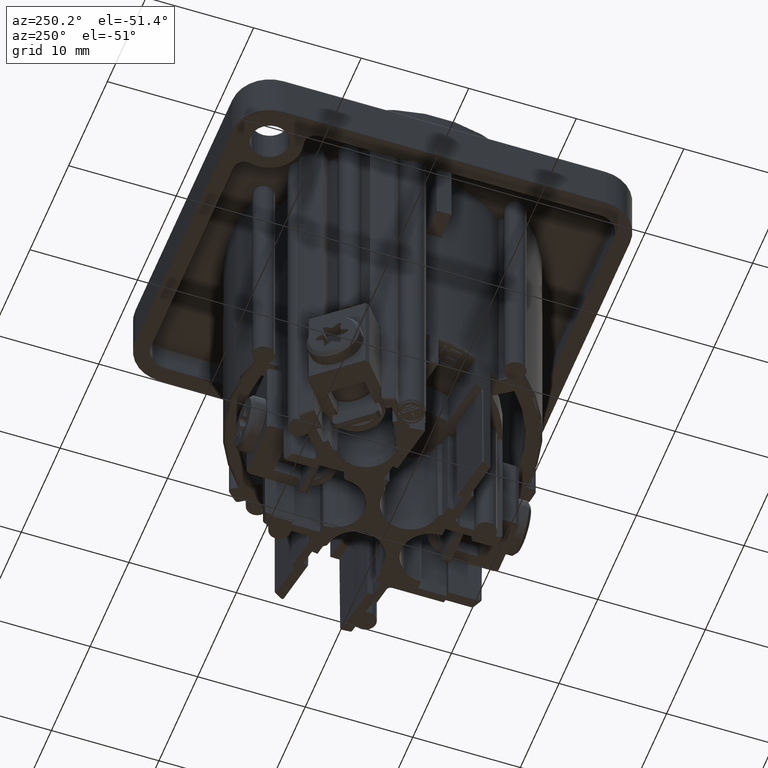
[diagram: clean part render]
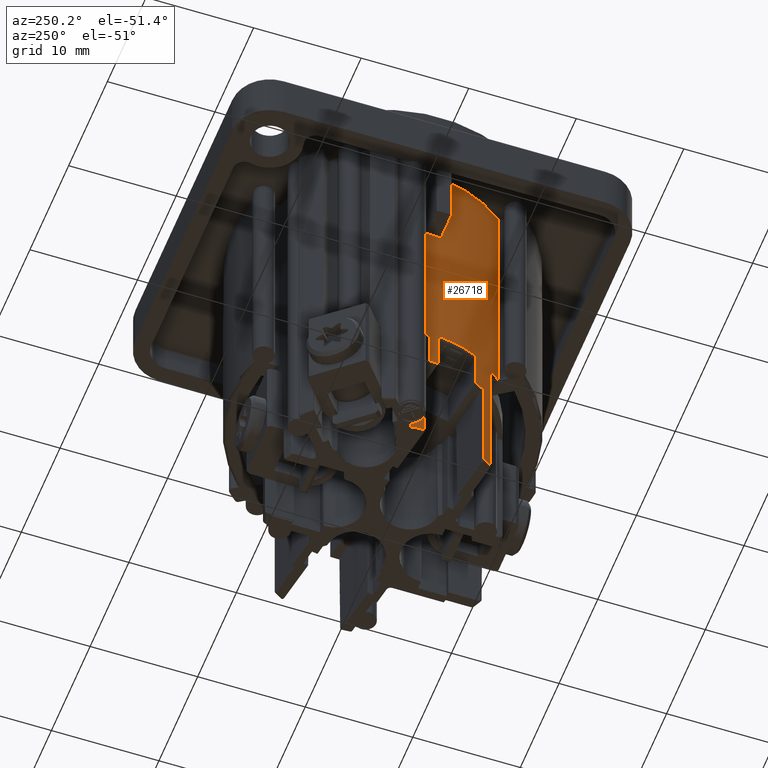
[diagram: same view with one face highlighted and labeled with its STEP entity id]
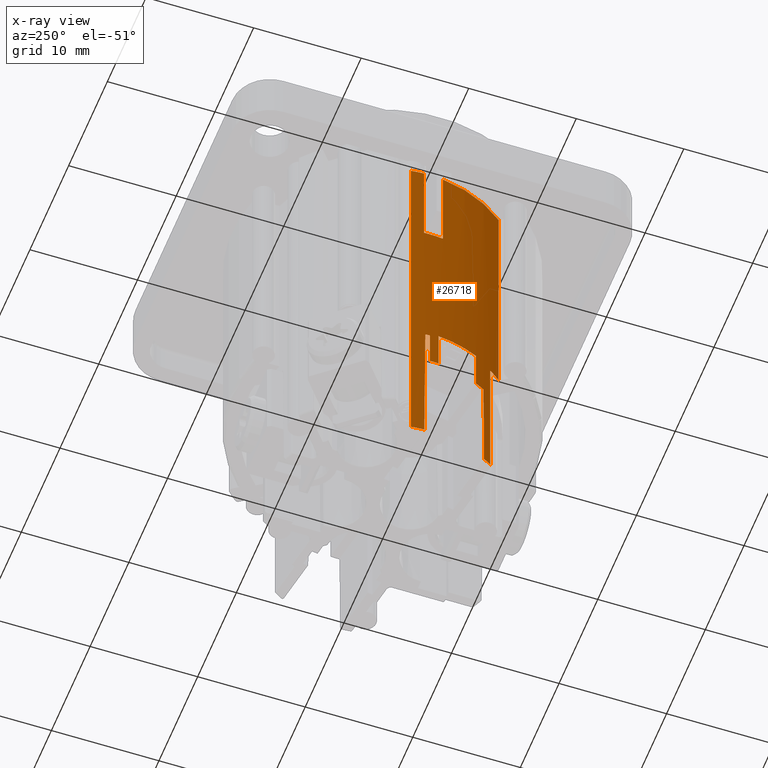
[diagram: x-ray of the same camera — body ghosted, the highlighted face saturated]
A machine part, auxiliary view. The second image highlights one B-rep face of the part: STEP entity #26718.
The next image is the same camera in x-ray: the body ghosted, the highlighted face saturated — about 0% of this face is hidden behind the body in this view.
In plain terms, the highlighted cylindrical surface (partial cylindrical patch) has radius 11.8 mm, axis along (0, 0, -1).
Its self-contained STEP definition (entity closure, byte-faithful):
#308=CARTESIAN_POINT('',(0.E0,0.E0,-2.7E1));
#309=DIRECTION('',(0.E0,0.E0,1.E0));
#310=DIRECTION('',(-9.997272618891E-1,2.335383985127E-2,0.E0));
#311=AXIS2_PLACEMENT_3D('',#308,#309,#310);
#804=CARTESIAN_POINT('',(0.E0,0.E0,-2.7E1));
#805=DIRECTION('',(0.E0,0.E0,1.E0));
#806=DIRECTION('',(-8.372283152960E-1,-5.468534978096E-1,0.E0));
#807=AXIS2_PLACEMENT_3D('',#804,#805,#806);
#1215=CARTESIAN_POINT('',(0.E0,0.E0,-3.055E1));
#1216=DIRECTION('',(0.E0,0.E0,-1.E0));
#1217=DIRECTION('',(-9.967069529658E-1,-8.108791469520E-2,0.E0));
#1218=AXIS2_PLACEMENT_3D('',#1215,#1216,#1217);
#1232=CARTESIAN_POINT('',(0.E0,0.E0,-3.055E1));
#1233=DIRECTION('',(0.E0,0.E0,1.E0));
#1234=DIRECTION('',(-9.145963573133E-1,-4.043680293857E-1,0.E0));
#1235=AXIS2_PLACEMENT_3D('',#1232,#1233,#1234);
#7259=CARTESIAN_POINT('',(0.E0,0.E0,-4.5E0));
#7260=DIRECTION('',(0.E0,0.E0,1.E0));
#7261=DIRECTION('',(-9.907769413206E-1,1.355029613970E-1,0.E0));
#7262=AXIS2_PLACEMENT_3D('',#7259,#7260,#7261);
#7344=CARTESIAN_POINT('',(0.E0,0.E0,-4.5E0));
#7345=DIRECTION('',(0.E0,0.E0,1.E0));
#7346=DIRECTION('',(-9.932139317775E-1,-1.163017012904E-1,0.E0));
#7347=AXIS2_PLACEMENT_3D('',#7344,#7345,#7346);
#7498=DIRECTION('',(6.506710985547E-13,4.758088073960E-12,-1.E0));
#7499=VECTOR('',#7498,3.59E1);
#7500=CARTESIAN_POINT('',(-1.169116790758E1,1.598934944485E0,-4.5E0));
#7501=LINE('',#7500,#7499);
#7502=CARTESIAN_POINT('',(-1.179413962429E1,3.718474455941E-1,-4.04E1));
#7503=CARTESIAN_POINT('',(-1.179464547757E1,3.558029519788E-1,
-3.816840273948E1));
#7504=CARTESIAN_POINT('',(-1.179559166685E1,3.237130971319E-1,
-3.370347214453E1));
#7505=CARTESIAN_POINT('',(-1.179640684720E1,2.916215281117E-1,
-2.923506940491E1));
#7506=CARTESIAN_POINT('',(-1.179678169031E1,2.755753102455E-1,-2.7E1));
#7508=CARTESIAN_POINT('',(0.E0,0.E0,-4.04E1));
#7509=DIRECTION('',(0.E0,0.E0,-1.E0));
#7510=DIRECTION('',(-9.995033579502E-1,3.151249666975E-2,0.E0));
#7511=AXIS2_PLACEMENT_3D('',#7508,#7509,#7510);
#7513=DIRECTION('',(-7.293763986357E-13,-3.174341646300E-12,-1.E0));
#7514=VECTOR('',#7513,8.3E0);
#7515=CARTESIAN_POINT('',(-1.179329820238E1,3.976399247729E-1,-4.5E0));
#7516=LINE('',#7515,#7514);
#7517=DIRECTION('',(-9.241335942808E-13,3.003434181412E-12,-1.E0));
#7518=VECTOR('',#7517,8.3E0);
#7519=CARTESIAN_POINT('',(-1.171992439497E1,-1.372360075227E0,-4.5E0));
#7520=LINE('',#7519,#7518);
#7521=DIRECTION('',(-1.587109420321E-8,-1.036639985975E-8,1.E0));
#7522=VECTOR('',#7521,1.319999999997E1);
#7523=CARTESIAN_POINT('',(-9.879293910995E0,-6.452871137316E0,
-4.019999999997E1));
#7524=LINE('',#7523,#7522);
#7525=CARTESIAN_POINT('',(0.E0,0.E0,-4.02E1));
#7526=DIRECTION('',(0.E0,0.E0,-1.E0));
#7527=DIRECTION('',(-8.372283152960E-1,-5.468534978096E-1,0.E0));
#7528=AXIS2_PLACEMENT_3D('',#7525,#7526,#7527);
#7530=CARTESIAN_POINT('',(-1.032917239528E1,-5.705101816728E0,
-4.020000000054E1));
#7531=CARTESIAN_POINT('',(-1.033495478863E1,-5.694632706920E0,
-3.859312588781E1));
#7532=CARTESIAN_POINT('',(-1.034648757520E1,-5.673678639346E0,
-3.537791844035E1));
#7533=CARTESIAN_POINT('',(-1.035795437151E1,-5.652691766625E0,
-3.215979255336E1));
#7534=CARTESIAN_POINT('',(-1.036367158157E1,-5.642190297252E0,-3.055E1));
#7536=CARTESIAN_POINT('',(0.E0,0.E0,-2.67E1));
#7537=DIRECTION('',(0.E0,0.E0,-1.E0));
#7538=DIRECTION('',(-9.145963573133E-1,-4.043680293857E-1,0.E0));
#7539=AXIS2_PLACEMENT_3D('',#7536,#7537,#7538);
#8322=CARTESIAN_POINT('',(0.E0,0.E0,-1.28E1));
#8323=DIRECTION('',(0.E0,0.E0,-1.E0));
#8324=DIRECTION('',(-9.932139317783E-1,-1.163017012840E-1,0.E0));
#8325=AXIS2_PLACEMENT_3D('',#8322,#8323,#8324);
#8357=DIRECTION('',(0.E0,0.E0,1.E0));
#8358=VECTOR('',#8357,2.25E1);
#8359=CARTESIAN_POINT('',(-9.102917003902E0,-7.508455368455E0,-2.7E1));
#8360=LINE('',#8359,#8358);
#8573=DIRECTION('',(0.E0,0.E0,-1.E0));
#8574=VECTOR('',#8573,3.85E0);
#8575=CARTESIAN_POINT('',(-1.079223701630E1,-4.771542746751E0,-2.67E1));
#8576=LINE('',#8575,#8574);
#8581=DIRECTION('',(0.E0,0.E0,1.E0));
#8582=VECTOR('',#8581,3.85E0);
#8583=CARTESIAN_POINT('',(-1.176114204500E1,-9.568373934033E-1,-3.055E1));
#8584=LINE('',#8583,#8582);
#8601=DIRECTION('',(0.E0,0.E0,-1.E0));
#8602=VECTOR('',#8601,3.55E0);
#8603=CARTESIAN_POINT('',(-1.179903154928E1,-1.511770457850E-1,-2.7E1));
#8604=LINE('',#8603,#8602);
#13650=CARTESIAN_POINT('',(-9.102917003902E0,-7.508455368455E0,-2.7E1));
#13651=CARTESIAN_POINT('',(-9.102917003902E0,-7.508455368455E0,-4.5E0));
#13652=VERTEX_POINT('',#13650);
#13653=VERTEX_POINT('',#13651);
#13680=CARTESIAN_POINT('',(-1.171992439498E1,-1.372360075151E0,-1.28E1));
#13681=CARTESIAN_POINT('',(-1.179329820238E1,3.976399246934E-1,-1.28E1));
#13682=VERTEX_POINT('',#13680);
#13683=VERTEX_POINT('',#13681);
#13688=CARTESIAN_POINT('',(-1.171992439497E1,-1.372360075227E0,-4.5E0));
#13689=VERTEX_POINT('',#13688);
#13690=CARTESIAN_POINT('',(-1.179329820238E1,3.976399247729E-1,-4.5E0));
#13691=VERTEX_POINT('',#13690);
#14245=CARTESIAN_POINT('',(-1.176114204500E1,-9.568373934033E-1,-3.055E1));
#14246=CARTESIAN_POINT('',(-1.179903154928E1,-1.511770457850E-1,-3.055E1));
#14247=VERTEX_POINT('',#14245);
#14248=VERTEX_POINT('',#14246);
#14249=CARTESIAN_POINT('',(-1.179903154928E1,-1.511770457850E-1,-2.7E1));
#14251=VERTEX_POINT('',#14249);
#14592=CARTESIAN_POINT('',(-1.169116790758E1,1.598934944485E0,-4.5E0));
#14593=VERTEX_POINT('',#14592);
#14596=CARTESIAN_POINT('',(-1.079223701630E1,-4.771542746751E0,-2.67E1));
#14597=CARTESIAN_POINT('',(-1.176114204500E1,-9.568373934033E-1,-2.67E1));
#14598=VERTEX_POINT('',#14596);
#14599=VERTEX_POINT('',#14597);
#14632=CARTESIAN_POINT('',(-1.079223701630E1,-4.771542746751E0,-3.055E1));
#14633=VERTEX_POINT('',#14632);
#14684=VERTEX_POINT('',#7502);
#14685=VERTEX_POINT('',#7506);
#14690=VERTEX_POINT('',#7530);
#14691=VERTEX_POINT('',#7534);
#14782=CARTESIAN_POINT('',(-9.879294120493E0,-6.452871274153E0,-4.02E1));
#14783=VERTEX_POINT('',#14782);
#14879=CARTESIAN_POINT('',(-9.879294120493E0,-6.452871274153E0,-2.7E1));
#14880=VERTEX_POINT('',#14879);
#14952=CARTESIAN_POINT('',(-1.169116790758E1,1.598934944485E0,-4.04E1));
#14953=VERTEX_POINT('',#14952);
#26678=CARTESIAN_POINT('',(0.E0,0.E0,-2.7E1));
#26679=DIRECTION('',(0.E0,0.E0,-1.E0));
#26680=DIRECTION('',(1.E0,0.E0,0.E0));
#26681=AXIS2_PLACEMENT_3D('',#26678,#26679,#26680);
#26682=CYLINDRICAL_SURFACE('',#26681,1.18E1);
#26684=ORIENTED_EDGE('',*,*,#26683,.F.);
#26686=ORIENTED_EDGE('',*,*,#26685,.T.);
#26687=ORIENTED_EDGE('',*,*,#26673,.F.);
#26688=ORIENTED_EDGE('',*,*,#26474,.T.);
#26690=ORIENTED_EDGE('',*,*,#26689,.T.);
#26692=ORIENTED_EDGE('',*,*,#26691,.F.);
#26694=ORIENTED_EDGE('',*,*,#26693,.F.);
#26695=ORIENTED_EDGE('',*,*,#26539,.T.);
#26697=ORIENTED_EDGE('',*,*,#26696,.F.);
#26698=ORIENTED_EDGE('',*,*,#17164,.F.);
#26700=ORIENTED_EDGE('',*,*,#26699,.F.);
#26702=ORIENTED_EDGE('',*,*,#26701,.T.);
#26704=ORIENTED_EDGE('',*,*,#26703,.T.);
#26705=ORIENTED_EDGE('',*,*,#17905,.F.);
#26707=ORIENTED_EDGE('',*,*,#26706,.F.);
#26709=ORIENTED_EDGE('',*,*,#26708,.T.);
#26711=ORIENTED_EDGE('',*,*,#26710,.F.);
#26712=ORIENTED_EDGE('',*,*,#17897,.T.);
#26714=ORIENTED_EDGE('',*,*,#26713,.F.);
#26715=ORIENTED_EDGE('',*,*,#16892,.F.);
#26716=EDGE_LOOP('',(#26684,#26686,#26687,#26688,#26690,#26692,#26694,#26695,
#26697,#26698,#26700,#26702,#26704,#26705,#26707,#26709,#26711,#26712,#26714,
#26715));
#26717=FACE_OUTER_BOUND('',#26716,.F.);
#312=CIRCLE('',#311,1.18E1);
#808=CIRCLE('',#807,1.18E1);
#1219=CIRCLE('',#1218,1.18E1);
#1236=CIRCLE('',#1235,1.18E1);
#7263=CIRCLE('',#7262,1.18E1);
#7348=CIRCLE('',#7347,1.18E1);
#7507=B_SPLINE_CURVE_WITH_KNOTS('',3,(#7502,#7503,#7504,#7505,#7506),
.UNSPECIFIED.,.F.,.F.,(4,1,4),(0.E0,5.E-1,1.E0),.UNSPECIFIED.);
#7512=CIRCLE('',#7511,1.18E1);
#7529=CIRCLE('',#7528,1.18E1);
#7535=B_SPLINE_CURVE_WITH_KNOTS('',3,(#7530,#7531,#7532,#7533,#7534),
.UNSPECIFIED.,.F.,.F.,(4,1,4),(0.E0,5.E-1,1.E0),.UNSPECIFIED.);
#7540=CIRCLE('',#7539,1.18E1);
#8326=CIRCLE('',#8325,1.18E1);
#16892=EDGE_CURVE('',#14685,#14251,#312,.T.);
#17164=EDGE_CURVE('',#14880,#13652,#808,.T.);
#17897=EDGE_CURVE('',#14247,#14248,#1219,.T.);
#17905=EDGE_CURVE('',#14633,#14691,#1236,.T.);
#26474=EDGE_CURVE('',#14593,#13691,#7263,.T.);
#26539=EDGE_CURVE('',#13689,#13653,#7348,.T.);
#26673=EDGE_CURVE('',#14593,#14953,#7501,.T.);
#26683=EDGE_CURVE('',#14684,#14685,#7507,.T.);
#26685=EDGE_CURVE('',#14684,#14953,#7512,.T.);
#26689=EDGE_CURVE('',#13691,#13683,#7516,.T.);
#26691=EDGE_CURVE('',#13682,#13683,#8326,.T.);
#26693=EDGE_CURVE('',#13689,#13682,#7520,.T.);
#26696=EDGE_CURVE('',#13652,#13653,#8360,.T.);
#26699=EDGE_CURVE('',#14783,#14880,#7524,.T.);
#26701=EDGE_CURVE('',#14783,#14690,#7529,.T.);
#26703=EDGE_CURVE('',#14690,#14691,#7535,.T.);
#26706=EDGE_CURVE('',#14598,#14633,#8576,.T.);
#26708=EDGE_CURVE('',#14598,#14599,#7540,.T.);
#26710=EDGE_CURVE('',#14247,#14599,#8584,.T.);
#26713=EDGE_CURVE('',#14251,#14248,#8604,.T.);
#26718=ADVANCED_FACE('',(#26717),#26682,.T.);